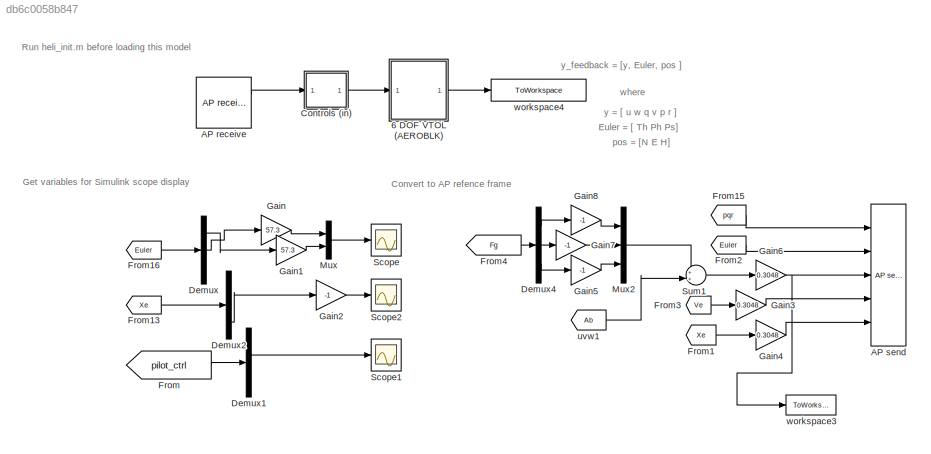
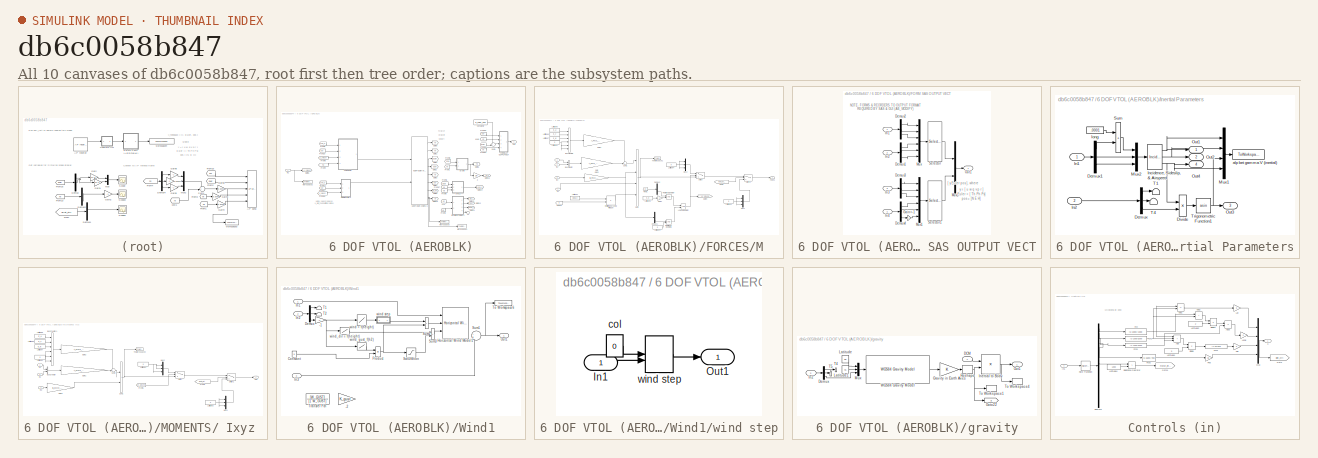
[diagram: thumbnail index - all 10 canvases of the model, root first then tree order]
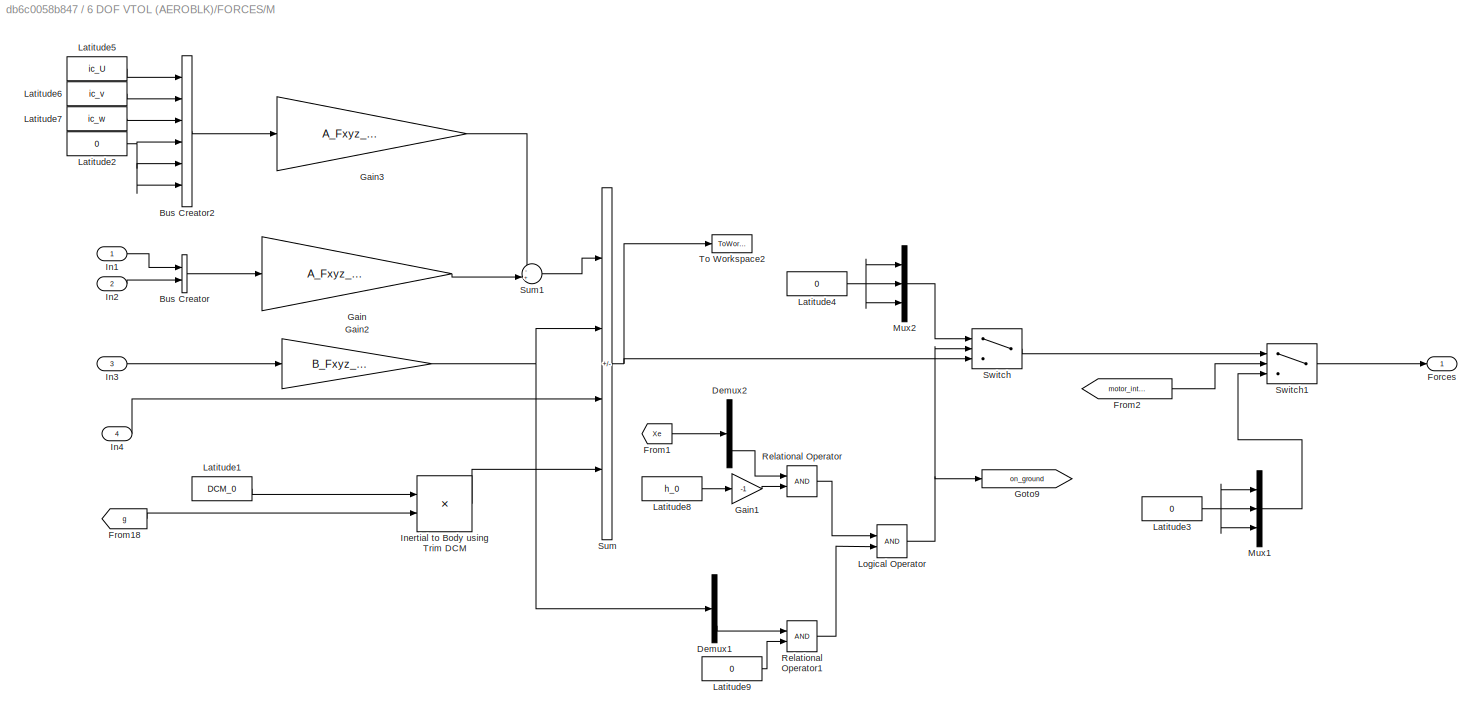
MODEL slx_db6c0058b847
KIND model
CONFIG AbsTol = 1e-3
CONFIG EnableMultiTasking = off
CONFIG FixedStep = 0.0025
CONFIG MaxStep = 0.01
CONFIG MinStep = auto
CONFIG RelTol = 1e-3
CONFIG SampleTimeConstraint = Unconstrained
CONFIG Solver = FixedStepAuto
CONFIG SolverName = FixedStepAuto
CONFIG StartTime = 0
CONFIG StopTime = Ts
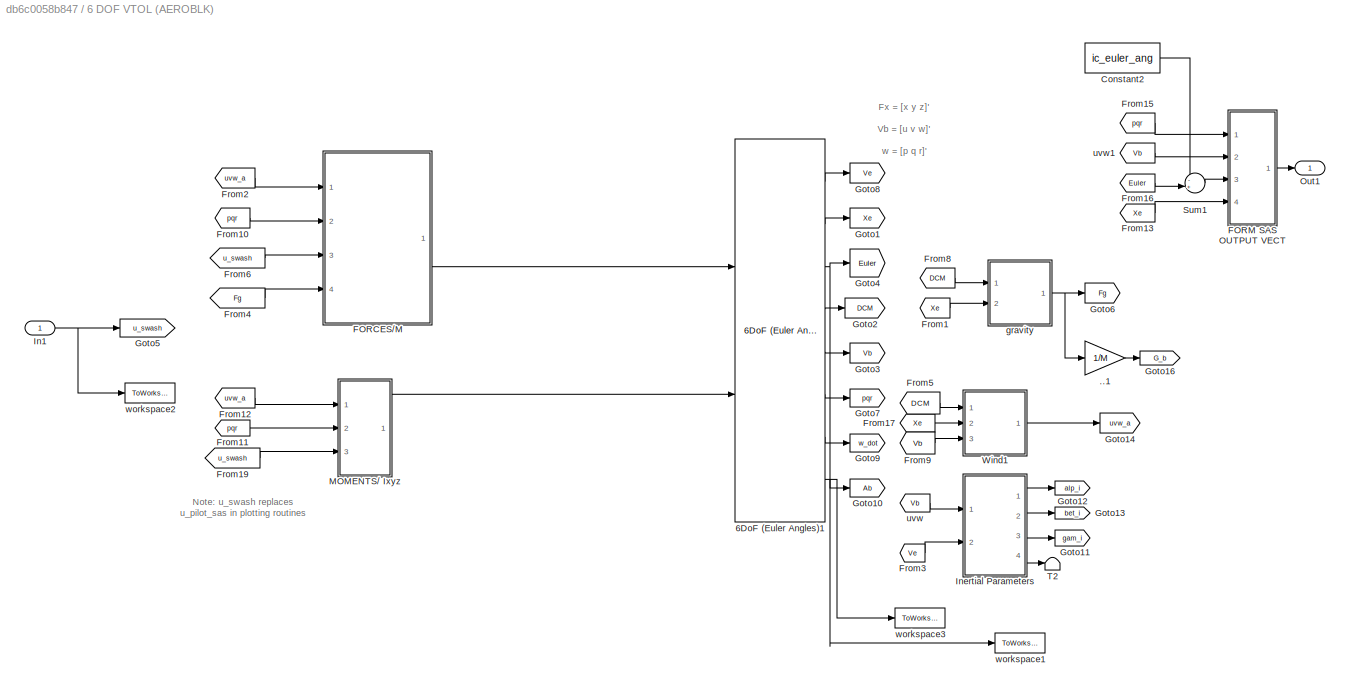
BLOCK [SubSystem] 6 DOF VTOL (AEROBLK)
  Ports = [1, 1]
  RequestExecContextInheritance = off
  ShowPortLabels = none
BLOCK [Gain] 6 DOF VTOL (AEROBLK)/..1
  Gain = 1/M
  OutDataTypeStr = Inherit: Same as input
  ParamDataTypeStr = Inherit: Same as input
  SaturateOnIntegerOverflow = on
BLOCK [Reference] 6 DOF VTOL (AEROBLK)/6DoF (Euler Angles)1  REF=aerolibobsolete/6DoF (Euler Angles)
  Ports = [2, 8]
  SourceBlock = aerolibobsolete/6DoF (Euler Angles)
  SourceProductBaseCode = AE
  SourceType = 6DoF EoM (Body Axis)
BLOCK [Constant] 6 DOF VTOL (AEROBLK)/Constant2
  Value = ic_euler_ang
BLOCK [SubSystem] 6 DOF VTOL (AEROBLK)/FORCES//M
  NameLocation = top
  Ports = [4, 1]
  RequestExecContextInheritance = off
BLOCK [BusCreator] 6 DOF VTOL (AEROBLK)/FORCES//M/Bus Creator
  DisplayOption = bar
  InheritFromInputs = on
  Inputs = 2
  Ports = [2, 1]
BLOCK [BusCreator] 6 DOF VTOL (AEROBLK)/FORCES//M/Bus Creator2
  DisplayOption = bar
  InheritFromInputs = on
  Inputs = 6
  Ports = [6, 1]
BLOCK [Demux] 6 DOF VTOL (AEROBLK)/FORCES//M/Demux1
  Outputs = 3
  Ports = [1, 3]
BLOCK [Demux] 6 DOF VTOL (AEROBLK)/FORCES//M/Demux2
  Outputs = 3
  Ports = [1, 3]
BLOCK [Outport] 6 DOF VTOL (AEROBLK)/FORCES//M/Forces
  VectorParamsAs1DForOutWhenUnconnected = off
BLOCK [From] 6 DOF VTOL (AEROBLK)/FORCES//M/From1
  CloseFcn = tagdialog Close
  GotoTag = Xe
  TagVisibility = global
BLOCK [From] 6 DOF VTOL (AEROBLK)/FORCES//M/From18
  CloseFcn = tagdialog Close
  GotoTag = g
  TagVisibility = global
BLOCK [From] 6 DOF VTOL (AEROBLK)/FORCES//M/From2
  CloseFcn = tagdialog Close
  GotoTag = motor_interlock
  TagVisibility = global
BLOCK [Gain] 6 DOF VTOL (AEROBLK)/FORCES//M/Gain
  Gain = A_Fxyz_uvw_pqr
  Multiplication = Matrix(K*u) (u vector)
BLOCK [Gain] 6 DOF VTOL (AEROBLK)/FORCES//M/Gain1
  Gain = -1
BLOCK [Gain] 6 DOF VTOL (AEROBLK)/FORCES//M/Gain2
  Gain = B_Fxyz_u_cont
  Multiplication = Matrix(K*u) (u vector)
BLOCK [Gain] 6 DOF VTOL (AEROBLK)/FORCES//M/Gain3
  Gain = A_Fxyz_uvw_pqr
  Multiplication = Matrix(K*u) (u vector)
BLOCK [Goto] 6 DOF VTOL (AEROBLK)/FORCES//M/Goto9
  GotoTag = on_ground
  TagVisibility = global
BLOCK [Inport] 6 DOF VTOL (AEROBLK)/FORCES//M/In1
BLOCK [Inport] 6 DOF VTOL (AEROBLK)/FORCES//M/In2
  Port = 2
BLOCK [Inport] 6 DOF VTOL (AEROBLK)/FORCES//M/In3
  Port = 3
BLOCK [Inport] 6 DOF VTOL (AEROBLK)/FORCES//M/In4
  Port = 4
BLOCK [Product] 6 DOF VTOL (AEROBLK)/FORCES//M/Inertial to Body using Trim DCM
  InputSameDT = on
  Multiplication = Matrix(*)
  OutDataTypeStr = Inherit: Same as first input
  Ports = [2, 1]
  SaturateOnIntegerOverflow = on
BLOCK [Constant] 6 DOF VTOL (AEROBLK)/FORCES//M/Latitude1
  Value = DCM_0
BLOCK [Constant] 6 DOF VTOL (AEROBLK)/FORCES//M/Latitude2
  Value = 0
BLOCK [Constant] 6 DOF VTOL (AEROBLK)/FORCES//M/Latitude3
  Value = 0
BLOCK [Constant] 6 DOF VTOL (AEROBLK)/FORCES//M/Latitude4
  Value = 0
BLOCK [Constant] 6 DOF VTOL (AEROBLK)/FORCES//M/Latitude5
  Value = ic_U
BLOCK [Constant] 6 DOF VTOL (AEROBLK)/FORCES//M/Latitude6
  Value = ic_v
BLOCK [Constant] 6 DOF VTOL (AEROBLK)/FORCES//M/Latitude7
  Value = ic_w
BLOCK [Constant] 6 DOF VTOL (AEROBLK)/FORCES//M/Latitude8
  Value = h_0
BLOCK [Constant] 6 DOF VTOL (AEROBLK)/FORCES//M/Latitude9
  Value = 0
BLOCK [Logic] 6 DOF VTOL (AEROBLK)/FORCES//M/Logical Operator
  AllPortsSameDT = off
  OutDataTypeStr = boolean
  Ports = [2, 1]
BLOCK [Mux] 6 DOF VTOL (AEROBLK)/FORCES//M/Mux1
  DisplayOption = bar
  Inputs = 3
  Ports = [3, 1]
BLOCK [Mux] 6 DOF VTOL (AEROBLK)/FORCES//M/Mux2
  DisplayOption = bar
  Inputs = 3
  Ports = [3, 1]
BLOCK [RelationalOperator] 6 DOF VTOL (AEROBLK)/FORCES//M/Relational Operator
  InputSameDT = off
  OutDataTypeStr = boolean
  Ports = [2, 1]
  RndMeth = Simplest
BLOCK [RelationalOperator] 6 DOF VTOL (AEROBLK)/FORCES//M/Relational Operator1
  InputSameDT = off
  OutDataTypeStr = boolean
  Ports = [2, 1]
  RndMeth = Simplest
BLOCK [Sum] 6 DOF VTOL (AEROBLK)/FORCES//M/Sum
  IconShape = rectangular
  Inputs = |+++-
  Ports = [4, 1]
BLOCK [Sum] 6 DOF VTOL (AEROBLK)/FORCES//M/Sum1
  Inputs = -+|
  Ports = [2, 1]
BLOCK [Switch] 6 DOF VTOL (AEROBLK)/FORCES//M/Switch
  Criteria = u2 > Threshold
  InputSameDT = off
  SaturateOnIntegerOverflow = off
BLOCK [Switch] 6 DOF VTOL (AEROBLK)/FORCES//M/Switch1
  Criteria = u2 > Threshold
  InputSameDT = off
  SaturateOnIntegerOverflow = off
BLOCK [ToWorkspace] 6 DOF VTOL (AEROBLK)/FORCES//M/To Workspace2
  MaxDataPoints = max_saved
  Ports = [1]
  SampleTime = -1
  VariableName = Fxyz
BLOCK [SubSystem] 6 DOF VTOL (AEROBLK)/FORM SAS OUTPUT VECT
  Ports = [4, 1]
  RequestExecContextInheritance = off
BLOCK [Demux] 6 DOF VTOL (AEROBLK)/FORM SAS OUTPUT VECT/Demux1
  Outputs = 3
  Ports = [1, 3]
BLOCK [Demux] 6 DOF VTOL (AEROBLK)/FORM SAS OUTPUT VECT/Demux2
  Outputs = 3
  Ports = [1, 3]
BLOCK [Demux] 6 DOF VTOL (AEROBLK)/FORM SAS OUTPUT VECT/Demux3
  Outputs = 3
  Ports = [1, 3]
BLOCK [Demux] 6 DOF VTOL (AEROBLK)/FORM SAS OUTPUT VECT/Demux4
  Outputs = 3
  Ports = [1, 3]
BLOCK [Gain] 6 DOF VTOL (AEROBLK)/FORM SAS OUTPUT VECT/Gain=-1
  Gain = -1
BLOCK [Inport] 6 DOF VTOL (AEROBLK)/FORM SAS OUTPUT VECT/In1
BLOCK [Inport] 6 DOF VTOL (AEROBLK)/FORM SAS OUTPUT VECT/In2
  Port = 2
BLOCK [Inport] 6 DOF VTOL (AEROBLK)/FORM SAS OUTPUT VECT/In3
  Port = 3
BLOCK [Inport] 6 DOF VTOL (AEROBLK)/FORM SAS OUTPUT VECT/In4
  Port = 4
BLOCK [Mux] 6 DOF VTOL (AEROBLK)/FORM SAS OUTPUT VECT/Mux
  DisplayOption = bar
  Inputs = 6
  Ports = [6, 1]
BLOCK [Mux] 6 DOF VTOL (AEROBLK)/FORM SAS OUTPUT VECT/Mux1
  DisplayOption = bar
  Inputs = 6
  Ports = [6, 1]
BLOCK [Mux] 6 DOF VTOL (AEROBLK)/FORM SAS OUTPUT VECT/Mux2
  DisplayOption = bar
  Inputs = 2
  Ports = [2, 1]
BLOCK [Outport] 6 DOF VTOL (AEROBLK)/FORM SAS OUTPUT VECT/Out1
  VectorParamsAs1DForOutWhenUnconnected = off
BLOCK [Selector] 6 DOF VTOL (AEROBLK)/FORM SAS OUTPUT VECT/Selector
  IndexOptions = Index vector (dialog)
  Indices = [4 6 2 5 1 3]
  InputPortWidth = 6
  OutputSizes = 1
  Ports = [1, 1]
BLOCK [Selector] 6 DOF VTOL (AEROBLK)/FORM SAS OUTPUT VECT/Selector1
  IndexOptions = Index vector (dialog)
  Indices = [2 1 3 4 5 6]
  InputPortWidth = 6
  OutputSizes = 1
  Ports = [1, 1]
BLOCK [From] 6 DOF VTOL (AEROBLK)/From1
  CloseFcn = tagdialog Close
  GotoTag = Xe
  TagVisibility = global
BLOCK [From] 6 DOF VTOL (AEROBLK)/From10
  CloseFcn = tagdialog Close
  GotoTag = pqr
  TagVisibility = global
BLOCK [From] 6 DOF VTOL (AEROBLK)/From11
  CloseFcn = tagdialog Close
  GotoTag = pqr
  TagVisibility = global
BLOCK [From] 6 DOF VTOL (AEROBLK)/From12
  CloseFcn = tagdialog Close
  GotoTag = uvw_a
  TagVisibility = global
BLOCK [From] 6 DOF VTOL (AEROBLK)/From13
  CloseFcn = tagdialog Close
  GotoTag = Xe
  TagVisibility = global
BLOCK [From] 6 DOF VTOL (AEROBLK)/From15
  CloseFcn = tagdialog Close
  GotoTag = pqr
  TagVisibility = global
BLOCK [From] 6 DOF VTOL (AEROBLK)/From16
  CloseFcn = tagdialog Close
  GotoTag = Euler
  TagVisibility = global
BLOCK [From] 6 DOF VTOL (AEROBLK)/From17
  CloseFcn = tagdialog Close
  GotoTag = Xe
  TagVisibility = global
BLOCK [From] 6 DOF VTOL (AEROBLK)/From19
  CloseFcn = tagdialog Close
  GotoTag = u_swash
  TagVisibility = global
BLOCK [From] 6 DOF VTOL (AEROBLK)/From2
  CloseFcn = tagdialog Close
  GotoTag = uvw_a
  TagVisibility = global
BLOCK [From] 6 DOF VTOL (AEROBLK)/From3
  CloseFcn = tagdialog Close
  GotoTag = Ve
  TagVisibility = global
BLOCK [From] 6 DOF VTOL (AEROBLK)/From4
  CloseFcn = tagdialog Close
  GotoTag = Fg
  TagVisibility = global
BLOCK [From] 6 DOF VTOL (AEROBLK)/From5
  CloseFcn = tagdialog Close
  GotoTag = DCM
  TagVisibility = global
BLOCK [From] 6 DOF VTOL (AEROBLK)/From6
  CloseFcn = tagdialog Close
  GotoTag = u_swash
  TagVisibility = global
BLOCK [From] 6 DOF VTOL (AEROBLK)/From8
  CloseFcn = tagdialog Close
  GotoTag = DCM
  TagVisibility = global
BLOCK [From] 6 DOF VTOL (AEROBLK)/From9
  CloseFcn = tagdialog Close
  GotoTag = Vb
  TagVisibility = global
BLOCK [Goto] 6 DOF VTOL (AEROBLK)/Goto1
  GotoTag = Xe
  TagVisibility = global
BLOCK [Goto] 6 DOF VTOL (AEROBLK)/Goto10
  GotoTag = Ab
  TagVisibility = global
BLOCK [Goto] 6 DOF VTOL (AEROBLK)/Goto11
  GotoTag = gam_i
  TagVisibility = global
BLOCK [Goto] 6 DOF VTOL (AEROBLK)/Goto12
  GotoTag = alp_i
  TagVisibility = global
BLOCK [Goto] 6 DOF VTOL (AEROBLK)/Goto13
  GotoTag = bet_i
  TagVisibility = global
BLOCK [Goto] 6 DOF VTOL (AEROBLK)/Goto14
  GotoTag = uvw_a
  TagVisibility = global
BLOCK [Goto] 6 DOF VTOL (AEROBLK)/Goto16
  GotoTag = G_b
  TagVisibility = global
BLOCK [Goto] 6 DOF VTOL (AEROBLK)/Goto2
  GotoTag = DCM
  TagVisibility = global
BLOCK [Goto] 6 DOF VTOL (AEROBLK)/Goto3
  GotoTag = Vb
  TagVisibility = global
BLOCK [Goto] 6 DOF VTOL (AEROBLK)/Goto4
  GotoTag = Euler
  TagVisibility = global
BLOCK [Goto] 6 DOF VTOL (AEROBLK)/Goto5
  GotoTag = u_swash
  TagVisibility = global
BLOCK [Goto] 6 DOF VTOL (AEROBLK)/Goto6
  GotoTag = Fg
  TagVisibility = global
BLOCK [Goto] 6 DOF VTOL (AEROBLK)/Goto7
  GotoTag = pqr
  TagVisibility = global
BLOCK [Goto] 6 DOF VTOL (AEROBLK)/Goto8
  GotoTag = Ve
  TagVisibility = global
BLOCK [Goto] 6 DOF VTOL (AEROBLK)/Goto9
  GotoTag = w_dot
  TagVisibility = global
BLOCK [Inport] 6 DOF VTOL (AEROBLK)/In1
BLOCK [SubSystem] 6 DOF VTOL (AEROBLK)/Inertial Parameters
  Ports = [2, 4]
  RequestExecContextInheritance = off
BLOCK [Demux] 6 DOF VTOL (AEROBLK)/Inertial Parameters/Demux
  Outputs = 3
  Ports = [1, 3]
BLOCK [Demux] 6 DOF VTOL (AEROBLK)/Inertial Parameters/Demux1
  Outputs = 3
  Ports = [1, 3]
BLOCK [Product] 6 DOF VTOL (AEROBLK)/Inertial Parameters/Divide
  Inputs = /*
  Ports = [2, 1]
BLOCK [Inport] 6 DOF VTOL (AEROBLK)/Inertial Parameters/In1
BLOCK [Inport] 6 DOF VTOL (AEROBLK)/Inertial Parameters/In2
  Port = 2
BLOCK [Reference] 6 DOF VTOL (AEROBLK)/Inertial Parameters/Incidence, Sideslip, & Airspeed  REF=aerolibasang/Incidence, Sideslip,
& Airspeed
  Ports = [1, 3]
  SourceBlock = aerolibasang/Incidence, Sideslip,\n& Airspeed
  SourceProductBaseCode = AE
  SourceType = Incidence,Sideslip,&Airspeed
BLOCK [Mux] 6 DOF VTOL (AEROBLK)/Inertial Parameters/Mux1
  DisplayOption = bar
  Ports = [4, 1]
BLOCK [Mux] 6 DOF VTOL (AEROBLK)/Inertial Parameters/Mux2
  DisplayOption = bar
  Inputs = 3
  Ports = [3, 1]
BLOCK [Outport] 6 DOF VTOL (AEROBLK)/Inertial Parameters/Out1
  NameLocation = top
  VectorParamsAs1DForOutWhenUnconnected = off
BLOCK [Outport] 6 DOF VTOL (AEROBLK)/Inertial Parameters/Out2
  Port = 2
  VectorParamsAs1DForOutWhenUnconnected = off
BLOCK [Outport] 6 DOF VTOL (AEROBLK)/Inertial Parameters/Out3
  Port = 3
  VectorParamsAs1DForOutWhenUnconnected = off
BLOCK [Outport] 6 DOF VTOL (AEROBLK)/Inertial Parameters/Out4
  Port = 4
  VectorParamsAs1DForOutWhenUnconnected = off
BLOCK [Sum] 6 DOF VTOL (AEROBLK)/Inertial Parameters/Sum
  IconShape = rectangular
  Inputs = |++
  Ports = [2, 1]
BLOCK [Terminator] 6 DOF VTOL (AEROBLK)/Inertial Parameters/T1
BLOCK [Terminator] 6 DOF VTOL (AEROBLK)/Inertial Parameters/T4
BLOCK [Trigonometry] 6 DOF VTOL (AEROBLK)/Inertial Parameters/Trigonometric Function1
  Operator = asin
  Ports = [1, 1]
BLOCK [ToWorkspace] 6 DOF VTOL (AEROBLK)/Inertial Parameters/alp bet gamma V (inertial)
  MaxDataPoints = max_saved
  Ports = [1]
  SampleTime = -1
  VariableName = am_inert
BLOCK [Constant] 6 DOF VTOL (AEROBLK)/Inertial Parameters/long
  Value = .0001
BLOCK [SubSystem] 6 DOF VTOL (AEROBLK)/MOMENTS// Ixyz 
  Ports = [3, 1]
  RequestExecContextInheritance = off
BLOCK [BusCreator] 6 DOF VTOL (AEROBLK)/MOMENTS// Ixyz /Bus Creator
  DisplayOption = bar
  InheritFromInputs = on
  Inputs = 2
  Ports = [2, 1]
BLOCK [BusCreator] 6 DOF VTOL (AEROBLK)/MOMENTS// Ixyz /Bus Creator1
  DisplayOption = bar
  InheritFromInputs = on
  Inputs = 6
  Ports = [6, 1]
BLOCK [From] 6 DOF VTOL (AEROBLK)/MOMENTS// Ixyz /From2
  CloseFcn = tagdialog Close
  GotoTag = motor_interlock
  TagVisibility = global
BLOCK [From] 6 DOF VTOL (AEROBLK)/MOMENTS// Ixyz /From6
  CloseFcn = tagdialog Close
  GotoTag = on_ground
  TagVisibility = global
BLOCK [Gain] 6 DOF VTOL (AEROBLK)/MOMENTS// Ixyz /Gain1
  Gain = A_Mxyz_uvw_pqr
  Multiplication = Matrix(K*u) (u vector)
BLOCK [Gain] 6 DOF VTOL (AEROBLK)/MOMENTS// Ixyz /Gain2
  Gain = A_Mxyz_uvw_pqr
  Multiplication = Matrix(K*u) (u vector)
BLOCK [Gain] 6 DOF VTOL (AEROBLK)/MOMENTS// Ixyz /Gain3
  Gain = B_Mxyz_u_cont
  Multiplication = Matrix(K*u) (u vector)
BLOCK [Inport] 6 DOF VTOL (AEROBLK)/MOMENTS// Ixyz /In1
BLOCK [Inport] 6 DOF VTOL (AEROBLK)/MOMENTS// Ixyz /In2
  Port = 2
BLOCK [Inport] 6 DOF VTOL (AEROBLK)/MOMENTS// Ixyz /In3
  Port = 3
BLOCK [Constant] 6 DOF VTOL (AEROBLK)/MOMENTS// Ixyz /Latitude2
  Value = 0
BLOCK [Constant] 6 DOF VTOL (AEROBLK)/MOMENTS// Ixyz /Latitude3
  Value = 0
BLOCK [Constant] 6 DOF VTOL (AEROBLK)/MOMENTS// Ixyz /Latitude4
  Value = 0
BLOCK [Constant] 6 DOF VTOL (AEROBLK)/MOMENTS// Ixyz /Latitude5
  Value = ic_U
BLOCK [Constant] 6 DOF VTOL (AEROBLK)/MOMENTS// Ixyz /Latitude6
  Value = ic_v
BLOCK [Constant] 6 DOF VTOL (AEROBLK)/MOMENTS// Ixyz /Latitude7
  Value = ic_w
BLOCK [Mux] 6 DOF VTOL (AEROBLK)/MOMENTS// Ixyz /Mux1
  DisplayOption = bar
  Inputs = 3
  Ports = [3, 1]
BLOCK [Mux] 6 DOF VTOL (AEROBLK)/MOMENTS// Ixyz /Mux2
  DisplayOption = bar
  Inputs = 3
  Ports = [3, 1]
BLOCK [Outport] 6 DOF VTOL (AEROBLK)/MOMENTS// Ixyz /Out1
  VectorParamsAs1DForOutWhenUnconnected = off
BLOCK [Sum] 6 DOF VTOL (AEROBLK)/MOMENTS// Ixyz /Sum1
  IconShape = rectangular
  Inputs = |++
  Ports = [2, 1]
BLOCK [Sum] 6 DOF VTOL (AEROBLK)/MOMENTS// Ixyz /Sum2
  Inputs = -+|
  Ports = [2, 1]
BLOCK [Switch] 6 DOF VTOL (AEROBLK)/MOMENTS// Ixyz /Switch
  Criteria = u2 > Threshold
  InputSameDT = off
  SaturateOnIntegerOverflow = off
BLOCK [Switch] 6 DOF VTOL (AEROBLK)/MOMENTS// Ixyz /Switch1
  Criteria = u2 > Threshold
  InputSameDT = off
  SaturateOnIntegerOverflow = off
BLOCK [ToWorkspace] 6 DOF VTOL (AEROBLK)/MOMENTS// Ixyz /To Workspace2
  MaxDataPoints = max_saved
  Ports = [1]
  SampleTime = -1
  VariableName = Mxyz
BLOCK [Outport] 6 DOF VTOL (AEROBLK)/Out1
  VectorParamsAs1DForOutWhenUnconnected = off
BLOCK [Sum] 6 DOF VTOL (AEROBLK)/Sum1
  Inputs = -+|
  Ports = [2, 1]
BLOCK [Terminator] 6 DOF VTOL (AEROBLK)/T2
BLOCK [SubSystem] 6 DOF VTOL (AEROBLK)/Wind1
  Ports = [3, 1]
  RequestExecContextInheritance = off
BLOCK [Gain] 6 DOF VTOL (AEROBLK)/Wind1/-1
  Gain = -1
BLOCK [Gain] 6 DOF VTOL (AEROBLK)/Wind1/-2
  Gain = K_gust
BLOCK [Constant] 6 DOF VTOL (AEROBLK)/Wind1/Constant
  Value = 0
BLOCK [Demux] 6 DOF VTOL (AEROBLK)/Wind1/Demux
  Outputs = 3
  Ports = [1, 3]
BLOCK [Reference] 6 DOF VTOL (AEROBLK)/Wind1/Horizontal Wind Model1  REF=aerolibwind2/Horizontal Wind Model
  NameLocation = top
  Ports = [3, 1]
  SourceBlock = aerolibwind2/Horizontal Wind Model
  SourceProductBaseCode = AE
  SourceType = Horizontal Wind Model
BLOCK [Inport] 6 DOF VTOL (AEROBLK)/Wind1/In1
BLOCK [Inport] 6 DOF VTOL (AEROBLK)/Wind1/In2
  Port = 2
BLOCK [Inport] 6 DOF VTOL (AEROBLK)/Wind1/In3
  Port = 3
BLOCK [Outport] 6 DOF VTOL (AEROBLK)/Wind1/Out1
  VectorParamsAs1DForOutWhenUnconnected = off
BLOCK [Product] 6 DOF VTOL (AEROBLK)/Wind1/Product
  Ports = [2, 1]
  RndMeth = Zero
BLOCK [Saturate] 6 DOF VTOL (AEROBLK)/Wind1/Saturation
  LowerLimit = -Th_wind_limit
  UpperLimit = Th_wind_limit
BLOCK [Sum] 6 DOF VTOL (AEROBLK)/Wind1/Sum1
  Inputs = -+
  Ports = [2, 1]
BLOCK [Sum] 6 DOF VTOL (AEROBLK)/Wind1/Sum2
  IconShape = rectangular
  Ports = [2, 1]
BLOCK [Sum] 6 DOF VTOL (AEROBLK)/Wind1/Sum3
  IconShape = rectangular
  Ports = [2, 1]
BLOCK [Terminator] 6 DOF VTOL (AEROBLK)/Wind1/T1
BLOCK [Terminator] 6 DOF VTOL (AEROBLK)/Wind1/T2
BLOCK [ToWorkspace] 6 DOF VTOL (AEROBLK)/Wind1/To Workspace6
  MaxDataPoints = max_saved
  Ports = [1]
  SampleTime = -1
  VariableName = uvw_a
BLOCK [TransferFcn] 6 DOF VTOL (AEROBLK)/Wind1/Transfer Fcn
  Denominator = [1 W_GUST]
  Numerator = [W_GUST]
BLOCK [Lookup] 6 DOF VTOL (AEROBLK)/Wind1/wind = f(height)
  InputValues = hw
  NameLocation = top
  SaturateOnIntegerOverflow = off
  Table = Vw
BLOCK [SubSystem] 6 DOF VTOL (AEROBLK)/Wind1/wind step
  NameLocation = top
  Ports = [1, 1]
  RequestExecContextInheritance = off
BLOCK [Inport] 6 DOF VTOL (AEROBLK)/Wind1/wind step/In1
BLOCK [Outport] 6 DOF VTOL (AEROBLK)/Wind1/wind step/Out1
  VectorParamsAs1DForOutWhenUnconnected = off
BLOCK [Constant] 6 DOF VTOL (AEROBLK)/Wind1/wind step/col
  NameLocation = top
  Value = 0
BLOCK [ManualSwitch] 6 DOF VTOL (AEROBLK)/Wind1/wind step/wind step
  NameLocation = top
BLOCK [Lookup] 6 DOF VTOL (AEROBLK)/Wind1/wind_dir = f(height)
  InputValues = hw
  NameLocation = top
  SaturateOnIntegerOverflow = off
  Table = Dir_w
BLOCK [Lookup] 6 DOF VTOL (AEROBLK)/Wind1/wind_gust_f(h2)
  InputValues = hw_gust
  LookUpMeth = Use Input Nearest
  NameLocation = top
  SaturateOnIntegerOverflow = off
  Table = K_gust_factor
BLOCK [SubSystem] 6 DOF VTOL (AEROBLK)/gravity
  Ports = [2, 1]
  RequestExecContextInheritance = off
BLOCK [Inport] 6 DOF VTOL (AEROBLK)/gravity/DCM
  IconDisplay = Signal name
BLOCK [Demux] 6 DOF VTOL (AEROBLK)/gravity/Demux
  Outputs = 3
  Ports = [1, 3]
BLOCK [Goto] 6 DOF VTOL (AEROBLK)/gravity/Goto22
  GotoTag = g
  TagVisibility = global
BLOCK [Gain] 6 DOF VTOL (AEROBLK)/gravity/Gravity in Earth Axes
  OutDataTypeStr = Inherit: Same as input
  ParamDataTypeStr = Inherit: Same as input
  SaturateOnIntegerOverflow = on
BLOCK [Inport] 6 DOF VTOL (AEROBLK)/gravity/In2
  IconDisplay = Signal name
  Port = 2
BLOCK [Product] 6 DOF VTOL (AEROBLK)/gravity/Inertial to Body
  InputSameDT = on
  Multiplication = Matrix(*)
  OutDataTypeStr = Inherit: Same as first input
  Ports = [2, 1]
  SaturateOnIntegerOverflow = on
BLOCK [Constant] 6 DOF VTOL (AEROBLK)/gravity/Latitude
  Value = 39
BLOCK [Constant] 6 DOF VTOL (AEROBLK)/gravity/Latitude1
  Value = 76
BLOCK [Mux] 6 DOF VTOL (AEROBLK)/gravity/Mux
  DisplayOption = bar
  Inputs = 3
  Ports = [3, 1]
BLOCK [Outport] 6 DOF VTOL (AEROBLK)/gravity/Out1
  IconDisplay = Port number and signal name
  VectorParamsAs1DForOutWhenUnconnected = off
BLOCK [Reshape] 6 DOF VTOL (AEROBLK)/gravity/Reshape
  Ports = [1, 1]
BLOCK [Terminator] 6 DOF VTOL (AEROBLK)/gravity/T4
BLOCK [Terminator] 6 DOF VTOL (AEROBLK)/gravity/T5
BLOCK [ToWorkspace] 6 DOF VTOL (AEROBLK)/gravity/To Workspace1
  MaxDataPoints = max_saved
  Ports = [1]
  SampleTime = -1
  VariableName = g
BLOCK [ToWorkspace] 6 DOF VTOL (AEROBLK)/gravity/To Workspace4
  MaxDataPoints = max_saved
  Ports = [1]
  SampleTime = -1
  VariableName = Fg
BLOCK [Reference] 6 DOF VTOL (AEROBLK)/gravity/WGS84 Gravity Model   REF=aerolibobsolete/WGS84 Gravity Model 
  Ports = [1, 1]
  SourceBlock = aerolibobsolete/WGS84 Gravity Model
  SourceProductBaseCode = AE
  SourceType = WGS84 Gravity Model 3D
BLOCK [From] 6 DOF VTOL (AEROBLK)/uvw
  CloseFcn = tagdialog Close
  GotoTag = Vb
  TagVisibility = global
BLOCK [From] 6 DOF VTOL (AEROBLK)/uvw1
  CloseFcn = tagdialog Close
  GotoTag = Vb
  TagVisibility = global
BLOCK [ToWorkspace] 6 DOF VTOL (AEROBLK)/workspace1
  MaxDataPoints = max_saved
  Ports = [1]
  VariableName = Euler
BLOCK [ToWorkspace] 6 DOF VTOL (AEROBLK)/workspace2
  MaxDataPoints = max_saved
  Ports = [1]
  VariableName = u_swash
BLOCK [ToWorkspace] 6 DOF VTOL (AEROBLK)/workspace3
  MaxDataPoints = max_saved
  Ports = [1]
  VariableName = Ab
BLOCK [Reference] AP receive  REF=AP_Conector/AP receive
  Ports = [0, 2]
  SourceBlock = AP_Conector/AP receive
  SourceType = SubSystem
BLOCK [Reference] AP send  REF=AP_Conector/AP send
  Ports = [5]
  SourceBlock = AP_Conector/AP send
  SourceType = SubSystem
BLOCK [SubSystem] Controls (in)
  Ports = [1, 1]
  RequestExecContextInheritance = off
BLOCK [Sum] Controls (in)/Add
  IconShape = rectangular
  Inputs = +++
  Ports = [3, 1]
BLOCK [Sum] Controls (in)/Add1
  IconShape = rectangular
  Inputs = +-
  Ports = [2, 1]
BLOCK [Sum] Controls (in)/Add2
  IconShape = rectangular
  Ports = [2, 1]
BLOCK [Sum] Controls (in)/Add3
  IconShape = rectangular
  Inputs = +-
  Ports = [2, 1]
BLOCK [Gain] Controls (in)/Coll
  Gain = 5
BLOCK [Demux] Controls (in)/Demux3
  Outputs = 16
  Ports = [1, 16]
BLOCK [Product] Controls (in)/Divide
  Inputs = */
  Ports = [2, 1]
BLOCK [Product] Controls (in)/Divide1
  Inputs = */
  Ports = [2, 1]
BLOCK [Fcn] Controls (in)/Fcn
  Expr = (u-1000)/1000
BLOCK [Fcn] Controls (in)/Fcn1
  Expr = (u-1000)/1000
BLOCK [Fcn] Controls (in)/Fcn2
  Expr = (u-1500)/400
BLOCK [Fcn] Controls (in)/Fcn3
  Expr = (u-1000)/1000
BLOCK [Fcn] Controls (in)/Fcn4
  Expr = (u-0.6)/0.28
BLOCK [Goto] Controls (in)/Goto
  GotoTag = pilot_ctrl
  TagVisibility = global
BLOCK [Goto] Controls (in)/Goto1
  GotoTag = motor_interlock
  TagVisibility = global
BLOCK [Inport] Controls (in)/In1
BLOCK [Gain] Controls (in)/Lat
  Gain = 5
BLOCK [Constant] Controls (in)/Latitude1
  Value = 3
BLOCK [Constant] Controls (in)/Latitude2
  Value = 2
BLOCK [Constant] Controls (in)/Latitude4
  Value = 1200
BLOCK [Gain] Controls (in)/Long
  Gain = 5
BLOCK [Mux] Controls (in)/Mux
  DisplayOption = bar
  Ports = [4, 1]
BLOCK [Gain] Controls (in)/Ped
  Gain = 2.5
BLOCK [RateTransition] Controls (in)/Rate Transition
BLOCK [RelationalOperator] Controls (in)/Relational Operator
  InputSameDT = off
  Operator = >
  OutDataTypeStr = boolean
  Ports = [2, 1]
  RndMeth = Simplest
BLOCK [Outport] Controls (in)/u
  VectorParamsAs1DForOutWhenUnconnected = off
BLOCK [Demux] Demux
  Outputs = 3
  Ports = [1, 3]
BLOCK [Demux] Demux1
  Ports = [1, 4]
BLOCK [Demux] Demux2
  Outputs = 3
  Ports = [1, 3]
BLOCK [Demux] Demux4
  Outputs = 3
  Ports = [1, 3]
BLOCK [From] From
  GotoTag = pilot_ctrl
  TagVisibility = global
BLOCK [From] From1
  CloseFcn = tagdialog Close
  GotoTag = Xe
  TagVisibility = global
BLOCK [From] From13
  CloseFcn = tagdialog Close
  GotoTag = Xe
  TagVisibility = global
BLOCK [From] From15
  CloseFcn = tagdialog Close
  GotoTag = pqr
  TagVisibility = global
BLOCK [From] From16
  CloseFcn = tagdialog Close
  GotoTag = Euler
  TagVisibility = global
BLOCK [From] From2
  CloseFcn = tagdialog Close
  GotoTag = Euler
  TagVisibility = global
BLOCK [From] From3
  CloseFcn = tagdialog Close
  GotoTag = Ve
  TagVisibility = global
BLOCK [From] From4
  CloseFcn = tagdialog Close
  GotoTag = Fg
  TagVisibility = global
BLOCK [Gain] Gain
  Gain = 57.3
BLOCK [Gain] Gain1
  Gain = 57.3
BLOCK [Gain] Gain2
  Gain = -1
BLOCK [Gain] Gain3
  Gain = 0.3048
BLOCK [Gain] Gain4
  Gain = 0.3048
BLOCK [Gain] Gain5
  Gain = -1
BLOCK [Gain] Gain6
  Gain = 0.3048
BLOCK [Gain] Gain7
  Gain = -1
BLOCK [Gain] Gain8
  Gain = -1
BLOCK [Mux] Mux
  DisplayOption = bar
  Inputs = 2
  Ports = [2, 1]
BLOCK [Mux] Mux2
  DisplayOption = bar
  Inputs = 3
  Ports = [3, 1]
BLOCK [Scope] Scope
  Floating = off
  NumInputPorts = 1
  Ports = [1]
  ScopeSpecificationString = Simulink.scopes.TimeScopeBlockCfg('CurrentConfiguration', extmgr.ConfigurationSet(extmgr.Configuration('Core','General UI',true),extmgr.Configuration('Core','Source UI',true),extmgr.Configuration('Sources','WiredSimulink',true),extmgr.Configuration('Visuals','Time Domain',true,'SerializedDisplays',{struct('MinYLimReal','-47.55101','MaxYLimReal','52.80551','YLabelReal','','MinYLimMag','0.00000','Ma...<+1390ch>
BLOCK [Scope] Scope1
  Floating = off
  NumInputPorts = 1
  Ports = [1]
  ScopeSpecificationString = Simulink.scopes.TimeScopeBlockCfg('CurrentConfiguration', extmgr.ConfigurationSet(extmgr.Configuration('Core','General UI',true),extmgr.Configuration('Core','Source UI',true),extmgr.Configuration('Sources','WiredSimulink',true,'DataLoggingVariableName','ScopeData1'),extmgr.Configuration('Visuals','Time Domain',true,'SerializedDisplays',{struct('MinYLimReal','-0.81417','MaxYLimReal','0.90542','YLab...<+1439ch>
BLOCK [Scope] Scope2
  Floating = off
  NumInputPorts = 1
  Ports = [1]
  ScopeSpecificationString = Simulink.scopes.TimeScopeBlockCfg('CurrentConfiguration', extmgr.ConfigurationSet(extmgr.Configuration('Core','General UI',true),extmgr.Configuration('Core','Source UI',true),extmgr.Configuration('Sources','WiredSimulink',true,'DataLoggingVariableName','ScopeData2'),extmgr.Configuration('Visuals','Time Domain',true,'SerializedDisplays',{struct('MinYLimReal','-478.06179','MaxYLimReal','142.00687','...<+1451ch>
BLOCK [Sum] Sum1
  Inputs = ++|
  Ports = [2, 1]
BLOCK [From] uvw1
  CloseFcn = tagdialog Close
  GotoTag = Ab
  TagVisibility = global
BLOCK [ToWorkspace] workspace3
  MaxDataPoints = max_saved
  Ports = [1]
  VariableName = Ab_mss
BLOCK [ToWorkspace] workspace4
  MaxDataPoints = max_saved
  Ports = [1]
  VariableName = y_feedback
ANNOTATION (root): Run heli_init.m before loading this model
ANNOTATION (root): Convert to AP refence frame
ANNOTATION (root): Euler = [ Th Ph Ps]
ANNOTATION (root): Get variables for Simulink scope display
ANNOTATION (root): pos = [N E H]
ANNOTATION (root): where
ANNOTATION (root): y = [ u w q v p r ]
ANNOTATION (root): y_feedback = [y, Euler, pos ]
ANNOTATION 6 DOF VTOL (AEROBLK): Fx = [x y z]' Vb = [u v w]' w = [p q r]' M = [L M N]' I = Ixx 0 0 0 Iyy 0 0 0 Izz
ANNOTATION 6 DOF VTOL (AEROBLK): Note: u_swash replaces u_pilot_sas in plotting routines
ANNOTATION 6 DOF VTOL (AEROBLK)/FORM SAS OUTPUT VECT: Euler = [ Th Ph Ps]
ANNOTATION 6 DOF VTOL (AEROBLK)/FORM SAS OUTPUT VECT: NOTE- FORMS & REORDERS TO OUTPUT FORMAT REQUIRED BY SAS & GUI (AB_MODIFY)
ANNOTATION 6 DOF VTOL (AEROBLK)/FORM SAS OUTPUT VECT: [ y Euler pos ], where
ANNOTATION 6 DOF VTOL (AEROBLK)/FORM SAS OUTPUT VECT: pos = [N E H]
ANNOTATION 6 DOF VTOL (AEROBLK)/FORM SAS OUTPUT VECT: y = [ u w q v p r ]
ANNOTATION Controls (in): u=[coll long lat ped]
LINE 6 DOF VTOL (AEROBLK)/..1:1 -> 6 DOF VTOL (AEROBLK)/Goto16:1
LINE 6 DOF VTOL (AEROBLK)/6DoF (Euler Angles)1:1 -> 6 DOF VTOL (AEROBLK)/Goto8:1
LINE 6 DOF VTOL (AEROBLK)/6DoF (Euler Angles)1:2 -> 6 DOF VTOL (AEROBLK)/Goto1:1
NET 6 DOF VTOL (AEROBLK)/6DoF (Euler Angles)1:3 -> 6 DOF VTOL (AEROBLK)/Goto4:1, 6 DOF VTOL (AEROBLK)/workspace1:1
LINE 6 DOF VTOL (AEROBLK)/6DoF (Euler Angles)1:4 -> 6 DOF VTOL (AEROBLK)/Goto2:1
LINE 6 DOF VTOL (AEROBLK)/6DoF (Euler Angles)1:5 -> 6 DOF VTOL (AEROBLK)/Goto3:1
LINE 6 DOF VTOL (AEROBLK)/6DoF (Euler Angles)1:6 -> 6 DOF VTOL (AEROBLK)/Goto7:1
LINE 6 DOF VTOL (AEROBLK)/6DoF (Euler Angles)1:7 -> 6 DOF VTOL (AEROBLK)/Goto9:1
NET 6 DOF VTOL (AEROBLK)/6DoF (Euler Angles)1:8 -> 6 DOF VTOL (AEROBLK)/Goto10:1, 6 DOF VTOL (AEROBLK)/workspace3:1
LINE 6 DOF VTOL (AEROBLK)/Constant2:1 -> 6 DOF VTOL (AEROBLK)/Sum1:1
LINE 6 DOF VTOL (AEROBLK)/FORCES//M/Bus Creator2:1 -> 6 DOF VTOL (AEROBLK)/FORCES//M/Gain3:1
LINE 6 DOF VTOL (AEROBLK)/FORCES//M/Bus Creator:1 -> 6 DOF VTOL (AEROBLK)/FORCES//M/Gain:1
LINE 6 DOF VTOL (AEROBLK)/FORCES//M/Demux1:3 -> 6 DOF VTOL (AEROBLK)/FORCES//M/Relational Operator1:1
LINE 6 DOF VTOL (AEROBLK)/FORCES//M/Demux2:3 -> 6 DOF VTOL (AEROBLK)/FORCES//M/Relational Operator:1
LINE 6 DOF VTOL (AEROBLK)/FORCES//M/From18:1 -> 6 DOF VTOL (AEROBLK)/FORCES//M/Inertial to Body using Trim DCM:2
LINE 6 DOF VTOL (AEROBLK)/FORCES//M/From1:1 -> 6 DOF VTOL (AEROBLK)/FORCES//M/Demux2:1
LINE 6 DOF VTOL (AEROBLK)/FORCES//M/From2:1 -> 6 DOF VTOL (AEROBLK)/FORCES//M/Switch1:2
LINE 6 DOF VTOL (AEROBLK)/FORCES//M/Gain1:1 -> 6 DOF VTOL (AEROBLK)/FORCES//M/Relational Operator:2
NET 6 DOF VTOL (AEROBLK)/FORCES//M/Gain2:1 -> 6 DOF VTOL (AEROBLK)/FORCES//M/Demux1:1, 6 DOF VTOL (AEROBLK)/FORCES//M/Sum:2
LINE 6 DOF VTOL (AEROBLK)/FORCES//M/Gain3:1 -> 6 DOF VTOL (AEROBLK)/FORCES//M/Sum1:1
LINE 6 DOF VTOL (AEROBLK)/FORCES//M/Gain:1 -> 6 DOF VTOL (AEROBLK)/FORCES//M/Sum1:2
LINE 6 DOF VTOL (AEROBLK)/FORCES//M/In1:1 -> 6 DOF VTOL (AEROBLK)/FORCES//M/Bus Creator:1
LINE 6 DOF VTOL (AEROBLK)/FORCES//M/In2:1 -> 6 DOF VTOL (AEROBLK)/FORCES//M/Bus Creator:2
LINE 6 DOF VTOL (AEROBLK)/FORCES//M/In3:1 -> 6 DOF VTOL (AEROBLK)/FORCES//M/Gain2:1
LINE 6 DOF VTOL (AEROBLK)/FORCES//M/In4:1 -> 6 DOF VTOL (AEROBLK)/FORCES//M/Sum:3
LINE 6 DOF VTOL (AEROBLK)/FORCES//M/Inertial to Body using Trim DCM:1 -> 6 DOF VTOL (AEROBLK)/FORCES//M/Sum:4
LINE 6 DOF VTOL (AEROBLK)/FORCES//M/Latitude1:1 -> 6 DOF VTOL (AEROBLK)/FORCES//M/Inertial to Body using Trim DCM:1
NET 6 DOF VTOL (AEROBLK)/FORCES//M/Latitude2:1 -> 6 DOF VTOL (AEROBLK)/FORCES//M/Bus Creator2:4, 6 DOF VTOL (AEROBLK)/FORCES//M/Bus Creator2:5, 6 DOF VTOL (AEROBLK)/FORCES//M/Bus Creator2:6
NET 6 DOF VTOL (AEROBLK)/FORCES//M/Latitude3:1 -> 6 DOF VTOL (AEROBLK)/FORCES//M/Mux1:1, 6 DOF VTOL (AEROBLK)/FORCES//M/Mux1:2, 6 DOF VTOL (AEROBLK)/FORCES//M/Mux1:3
NET 6 DOF VTOL (AEROBLK)/FORCES//M/Latitude4:1 -> 6 DOF VTOL (AEROBLK)/FORCES//M/Mux2:1, 6 DOF VTOL (AEROBLK)/FORCES//M/Mux2:2, 6 DOF VTOL (AEROBLK)/FORCES//M/Mux2:3
LINE 6 DOF VTOL (AEROBLK)/FORCES//M/Latitude5:1 -> 6 DOF VTOL (AEROBLK)/FORCES//M/Bus Creator2:1
LINE 6 DOF VTOL (AEROBLK)/FORCES//M/Latitude6:1 -> 6 DOF VTOL (AEROBLK)/FORCES//M/Bus Creator2:2
LINE 6 DOF VTOL (AEROBLK)/FORCES//M/Latitude7:1 -> 6 DOF VTOL (AEROBLK)/FORCES//M/Bus Creator2:3
LINE 6 DOF VTOL (AEROBLK)/FORCES//M/Latitude8:1 -> 6 DOF VTOL (AEROBLK)/FORCES//M/Gain1:1
LINE 6 DOF VTOL (AEROBLK)/FORCES//M/Latitude9:1 -> 6 DOF VTOL (AEROBLK)/FORCES//M/Relational Operator1:2
NET 6 DOF VTOL (AEROBLK)/FORCES//M/Logical Operator:1 -> 6 DOF VTOL (AEROBLK)/FORCES//M/Goto9:1, 6 DOF VTOL (AEROBLK)/FORCES//M/Switch:2
LINE 6 DOF VTOL (AEROBLK)/FORCES//M/Mux1:1 -> 6 DOF VTOL (AEROBLK)/FORCES//M/Switch1:3
LINE 6 DOF VTOL (AEROBLK)/FORCES//M/Mux2:1 -> 6 DOF VTOL (AEROBLK)/FORCES//M/Switch:1
LINE 6 DOF VTOL (AEROBLK)/FORCES//M/Relational Operator1:1 -> 6 DOF VTOL (AEROBLK)/FORCES//M/Logical Operator:2
LINE 6 DOF VTOL (AEROBLK)/FORCES//M/Relational Operator:1 -> 6 DOF VTOL (AEROBLK)/FORCES//M/Logical Operator:1
LINE 6 DOF VTOL (AEROBLK)/FORCES//M/Sum1:1 -> 6 DOF VTOL (AEROBLK)/FORCES//M/Sum:1
NET 6 DOF VTOL (AEROBLK)/FORCES//M/Sum:1 -> 6 DOF VTOL (AEROBLK)/FORCES//M/Switch:3, 6 DOF VTOL (AEROBLK)/FORCES//M/To Workspace2:1
LINE 6 DOF VTOL (AEROBLK)/FORCES//M/Switch1:1 -> 6 DOF VTOL (AEROBLK)/FORCES//M/Forces:1
LINE 6 DOF VTOL (AEROBLK)/FORCES//M/Switch:1 -> 6 DOF VTOL (AEROBLK)/FORCES//M/Switch1:1
LINE 6 DOF VTOL (AEROBLK)/FORCES//M:1 -> 6 DOF VTOL (AEROBLK)/6DoF (Euler Angles)1:1
LINE 6 DOF VTOL (AEROBLK)/FORM SAS OUTPUT VECT/Demux1:1 -> 6 DOF VTOL (AEROBLK)/FORM SAS OUTPUT VECT/Mux:4
LINE 6 DOF VTOL (AEROBLK)/FORM SAS OUTPUT VECT/Demux1:2 -> 6 DOF VTOL (AEROBLK)/FORM SAS OUTPUT VECT/Mux:5
LINE 6 DOF VTOL (AEROBLK)/FORM SAS OUTPUT VECT/Demux1:3 -> 6 DOF VTOL (AEROBLK)/FORM SAS OUTPUT VECT/Mux:6
LINE 6 DOF VTOL (AEROBLK)/FORM SAS OUTPUT VECT/Demux2:1 -> 6 DOF VTOL (AEROBLK)/FORM SAS OUTPUT VECT/Mux:1
LINE 6 DOF VTOL (AEROBLK)/FORM SAS OUTPUT VECT/Demux2:2 -> 6 DOF VTOL (AEROBLK)/FORM SAS OUTPUT VECT/Mux:2
LINE 6 DOF VTOL (AEROBLK)/FORM SAS OUTPUT VECT/Demux2:3 -> 6 DOF VTOL (AEROBLK)/FORM SAS OUTPUT VECT/Mux:3
LINE 6 DOF VTOL (AEROBLK)/FORM SAS OUTPUT VECT/Demux3:1 -> 6 DOF VTOL (AEROBLK)/FORM SAS OUTPUT VECT/Mux1:1
LINE 6 DOF VTOL (AEROBLK)/FORM SAS OUTPUT VECT/Demux3:2 -> 6 DOF VTOL (AEROBLK)/FORM SAS OUTPUT VECT/Mux1:2
LINE 6 DOF VTOL (AEROBLK)/FORM SAS OUTPUT VECT/Demux3:3 -> 6 DOF VTOL (AEROBLK)/FORM SAS OUTPUT VECT/Mux1:3
LINE 6 DOF VTOL (AEROBLK)/FORM SAS OUTPUT VECT/Demux4:1 -> 6 DOF VTOL (AEROBLK)/FORM SAS OUTPUT VECT/Mux1:4
LINE 6 DOF VTOL (AEROBLK)/FORM SAS OUTPUT VECT/Demux4:2 -> 6 DOF VTOL (AEROBLK)/FORM SAS OUTPUT VECT/Mux1:5
LINE 6 DOF VTOL (AEROBLK)/FORM SAS OUTPUT VECT/Demux4:3 -> 6 DOF VTOL (AEROBLK)/FORM SAS OUTPUT VECT/Gain=-1:1
LINE 6 DOF VTOL (AEROBLK)/FORM SAS OUTPUT VECT/Gain=-1:1 -> 6 DOF VTOL (AEROBLK)/FORM SAS OUTPUT VECT/Mux1:6
LINE 6 DOF VTOL (AEROBLK)/FORM SAS OUTPUT VECT/In1:1 -> 6 DOF VTOL (AEROBLK)/FORM SAS OUTPUT VECT/Demux2:1
LINE 6 DOF VTOL (AEROBLK)/FORM SAS OUTPUT VECT/In2:1 -> 6 DOF VTOL (AEROBLK)/FORM SAS OUTPUT VECT/Demux1:1
LINE 6 DOF VTOL (AEROBLK)/FORM SAS OUTPUT VECT/In3:1 -> 6 DOF VTOL (AEROBLK)/FORM SAS OUTPUT VECT/Demux3:1
LINE 6 DOF VTOL (AEROBLK)/FORM SAS OUTPUT VECT/In4:1 -> 6 DOF VTOL (AEROBLK)/FORM SAS OUTPUT VECT/Demux4:1
LINE 6 DOF VTOL (AEROBLK)/FORM SAS OUTPUT VECT/Mux1:1 -> 6 DOF VTOL (AEROBLK)/FORM SAS OUTPUT VECT/Selector1:1
LINE 6 DOF VTOL (AEROBLK)/FORM SAS OUTPUT VECT/Mux2:1 -> 6 DOF VTOL (AEROBLK)/FORM SAS OUTPUT VECT/Out1:1
LINE 6 DOF VTOL (AEROBLK)/FORM SAS OUTPUT VECT/Mux:1 -> 6 DOF VTOL (AEROBLK)/FORM SAS OUTPUT VECT/Selector:1
LINE 6 DOF VTOL (AEROBLK)/FORM SAS OUTPUT VECT/Selector1:1 -> 6 DOF VTOL (AEROBLK)/FORM SAS OUTPUT VECT/Mux2:2
LINE 6 DOF VTOL (AEROBLK)/FORM SAS OUTPUT VECT/Selector:1 -> 6 DOF VTOL (AEROBLK)/FORM SAS OUTPUT VECT/Mux2:1
LINE 6 DOF VTOL (AEROBLK)/FORM SAS OUTPUT VECT:1 -> 6 DOF VTOL (AEROBLK)/Out1:1
LINE 6 DOF VTOL (AEROBLK)/From10:1 -> 6 DOF VTOL (AEROBLK)/FORCES//M:2
LINE 6 DOF VTOL (AEROBLK)/From11:1 -> 6 DOF VTOL (AEROBLK)/MOMENTS// Ixyz :2
LINE 6 DOF VTOL (AEROBLK)/From12:1 -> 6 DOF VTOL (AEROBLK)/MOMENTS// Ixyz :1
LINE 6 DOF VTOL (AEROBLK)/From13:1 -> 6 DOF VTOL (AEROBLK)/FORM SAS OUTPUT VECT:4
LINE 6 DOF VTOL (AEROBLK)/From15:1 -> 6 DOF VTOL (AEROBLK)/FORM SAS OUTPUT VECT:1
LINE 6 DOF VTOL (AEROBLK)/From16:1 -> 6 DOF VTOL (AEROBLK)/Sum1:2
LINE 6 DOF VTOL (AEROBLK)/From17:1 -> 6 DOF VTOL (AEROBLK)/Wind1:2
LINE 6 DOF VTOL (AEROBLK)/From19:1 -> 6 DOF VTOL (AEROBLK)/MOMENTS// Ixyz :3
LINE 6 DOF VTOL (AEROBLK)/From1:1 -> 6 DOF VTOL (AEROBLK)/gravity:2
LINE 6 DOF VTOL (AEROBLK)/From2:1 -> 6 DOF VTOL (AEROBLK)/FORCES//M:1
LINE 6 DOF VTOL (AEROBLK)/From3:1 -> 6 DOF VTOL (AEROBLK)/Inertial Parameters:2
LINE 6 DOF VTOL (AEROBLK)/From4:1 -> 6 DOF VTOL (AEROBLK)/FORCES//M:4
LINE 6 DOF VTOL (AEROBLK)/From5:1 -> 6 DOF VTOL (AEROBLK)/Wind1:1
LINE 6 DOF VTOL (AEROBLK)/From6:1 -> 6 DOF VTOL (AEROBLK)/FORCES//M:3
LINE 6 DOF VTOL (AEROBLK)/From8:1 -> 6 DOF VTOL (AEROBLK)/gravity:1
LINE 6 DOF VTOL (AEROBLK)/From9:1 -> 6 DOF VTOL (AEROBLK)/Wind1:3
NET 6 DOF VTOL (AEROBLK)/In1:1 -> 6 DOF VTOL (AEROBLK)/Goto5:1, 6 DOF VTOL (AEROBLK)/workspace2:1
LINE 6 DOF VTOL (AEROBLK)/Inertial Parameters/Demux1:1 -> 6 DOF VTOL (AEROBLK)/Inertial Parameters/Sum:2
LINE 6 DOF VTOL (AEROBLK)/Inertial Parameters/Demux1:2 -> 6 DOF VTOL (AEROBLK)/Inertial Parameters/Mux2:2
LINE 6 DOF VTOL (AEROBLK)/Inertial Parameters/Demux1:3 -> 6 DOF VTOL (AEROBLK)/Inertial Parameters/Mux2:3
LINE 6 DOF VTOL (AEROBLK)/Inertial Parameters/Demux:1 -> 6 DOF VTOL (AEROBLK)/Inertial Parameters/T1:1
LINE 6 DOF VTOL (AEROBLK)/Inertial Parameters/Demux:2 -> 6 DOF VTOL (AEROBLK)/Inertial Parameters/T4:1
LINE 6 DOF VTOL (AEROBLK)/Inertial Parameters/Demux:3 -> 6 DOF VTOL (AEROBLK)/Inertial Parameters/Divide:2
LINE 6 DOF VTOL (AEROBLK)/Inertial Parameters/Divide:1 -> 6 DOF VTOL (AEROBLK)/Inertial Parameters/Trigonometric Function1:1
LINE 6 DOF VTOL (AEROBLK)/Inertial Parameters/In1:1 -> 6 DOF VTOL (AEROBLK)/Inertial Parameters/Demux1:1
LINE 6 DOF VTOL (AEROBLK)/Inertial Parameters/In2:1 -> 6 DOF VTOL (AEROBLK)/Inertial Parameters/Demux:1
NET 6 DOF VTOL (AEROBLK)/Inertial Parameters/Incidence, Sideslip, & Airspeed:1 -> 6 DOF VTOL (AEROBLK)/Inertial Parameters/Mux1:1, 6 DOF VTOL (AEROBLK)/Inertial Parameters/Out1:1
NET 6 DOF VTOL (AEROBLK)/Inertial Parameters/Incidence, Sideslip, & Airspeed:2 -> 6 DOF VTOL (AEROBLK)/Inertial Parameters/Mux1:2, 6 DOF VTOL (AEROBLK)/Inertial Parameters/Out2:1
NET 6 DOF VTOL (AEROBLK)/Inertial Parameters/Incidence, Sideslip, & Airspeed:3 -> 6 DOF VTOL (AEROBLK)/Inertial Parameters/Divide:1, 6 DOF VTOL (AEROBLK)/Inertial Parameters/Mux1:4, 6 DOF VTOL (AEROBLK)/Inertial Parameters/Out4:1
LINE 6 DOF VTOL (AEROBLK)/Inertial Parameters/Mux1:1 -> 6 DOF VTOL (AEROBLK)/Inertial Parameters/alp bet gamma V (inertial):1
LINE 6 DOF VTOL (AEROBLK)/Inertial Parameters/Mux2:1 -> 6 DOF VTOL (AEROBLK)/Inertial Parameters/Incidence, Sideslip, & Airspeed:1
LINE 6 DOF VTOL (AEROBLK)/Inertial Parameters/Sum:1 -> 6 DOF VTOL (AEROBLK)/Inertial Parameters/Mux2:1
NET 6 DOF VTOL (AEROBLK)/Inertial Parameters/Trigonometric Function1:1 -> 6 DOF VTOL (AEROBLK)/Inertial Parameters/Mux1:3, 6 DOF VTOL (AEROBLK)/Inertial Parameters/Out3:1
LINE 6 DOF VTOL (AEROBLK)/Inertial Parameters/long:1 -> 6 DOF VTOL (AEROBLK)/Inertial Parameters/Sum:1
LINE 6 DOF VTOL (AEROBLK)/Inertial Parameters:1 -> 6 DOF VTOL (AEROBLK)/Goto12:1
LINE 6 DOF VTOL (AEROBLK)/Inertial Parameters:2 -> 6 DOF VTOL (AEROBLK)/Goto13:1
LINE 6 DOF VTOL (AEROBLK)/Inertial Parameters:3 -> 6 DOF VTOL (AEROBLK)/Goto11:1
LINE 6 DOF VTOL (AEROBLK)/Inertial Parameters:4 -> 6 DOF VTOL (AEROBLK)/T2:1
LINE 6 DOF VTOL (AEROBLK)/MOMENTS// Ixyz /Bus Creator1:1 -> 6 DOF VTOL (AEROBLK)/MOMENTS// Ixyz /Gain2:1
LINE 6 DOF VTOL (AEROBLK)/MOMENTS// Ixyz /Bus Creator:1 -> 6 DOF VTOL (AEROBLK)/MOMENTS// Ixyz /Gain1:1
LINE 6 DOF VTOL (AEROBLK)/MOMENTS// Ixyz /From2:1 -> 6 DOF VTOL (AEROBLK)/MOMENTS// Ixyz /Switch1:2
LINE 6 DOF VTOL (AEROBLK)/MOMENTS// Ixyz /From6:1 -> 6 DOF VTOL (AEROBLK)/MOMENTS// Ixyz /Switch:2
LINE 6 DOF VTOL (AEROBLK)/MOMENTS// Ixyz /Gain1:1 -> 6 DOF VTOL (AEROBLK)/MOMENTS// Ixyz /Sum2:2
LINE 6 DOF VTOL (AEROBLK)/MOMENTS// Ixyz /Gain2:1 -> 6 DOF VTOL (AEROBLK)/MOMENTS// Ixyz /Sum2:1
LINE 6 DOF VTOL (AEROBLK)/MOMENTS// Ixyz /Gain3:1 -> 6 DOF VTOL (AEROBLK)/MOMENTS// Ixyz /Sum1:2
LINE 6 DOF VTOL (AEROBLK)/MOMENTS// Ixyz /In1:1 -> 6 DOF VTOL (AEROBLK)/MOMENTS// Ixyz /Bus Creator:1
LINE 6 DOF VTOL (AEROBLK)/MOMENTS// Ixyz /In2:1 -> 6 DOF VTOL (AEROBLK)/MOMENTS// Ixyz /Bus Creator:2
LINE 6 DOF VTOL (AEROBLK)/MOMENTS// Ixyz /In3:1 -> 6 DOF VTOL (AEROBLK)/MOMENTS// Ixyz /Gain3:1
NET 6 DOF VTOL (AEROBLK)/MOMENTS// Ixyz /Latitude2:1 -> 6 DOF VTOL (AEROBLK)/MOMENTS// Ixyz /Bus Creator1:4, 6 DOF VTOL (AEROBLK)/MOMENTS// Ixyz /Bus Creator1:5, 6 DOF VTOL (AEROBLK)/MOMENTS// Ixyz /Bus Creator1:6
NET 6 DOF VTOL (AEROBLK)/MOMENTS// Ixyz /Latitude3:1 -> 6 DOF VTOL (AEROBLK)/MOMENTS// Ixyz /Mux1:1, 6 DOF VTOL (AEROBLK)/MOMENTS// Ixyz /Mux1:2, 6 DOF VTOL (AEROBLK)/MOMENTS// Ixyz /Mux1:3
NET 6 DOF VTOL (AEROBLK)/MOMENTS// Ixyz /Latitude4:1 -> 6 DOF VTOL (AEROBLK)/MOMENTS// Ixyz /Mux2:1, 6 DOF VTOL (AEROBLK)/MOMENTS// Ixyz /Mux2:2, 6 DOF VTOL (AEROBLK)/MOMENTS// Ixyz /Mux2:3
LINE 6 DOF VTOL (AEROBLK)/MOMENTS// Ixyz /Latitude5:1 -> 6 DOF VTOL (AEROBLK)/MOMENTS// Ixyz /Bus Creator1:1
LINE 6 DOF VTOL (AEROBLK)/MOMENTS// Ixyz /Latitude6:1 -> 6 DOF VTOL (AEROBLK)/MOMENTS// Ixyz /Bus Creator1:2
LINE 6 DOF VTOL (AEROBLK)/MOMENTS// Ixyz /Latitude7:1 -> 6 DOF VTOL (AEROBLK)/MOMENTS// Ixyz /Bus Creator1:3
LINE 6 DOF VTOL (AEROBLK)/MOMENTS// Ixyz /Mux1:1 -> 6 DOF VTOL (AEROBLK)/MOMENTS// Ixyz /Switch1:3
LINE 6 DOF VTOL (AEROBLK)/MOMENTS// Ixyz /Mux2:1 -> 6 DOF VTOL (AEROBLK)/MOMENTS// Ixyz /Switch:1
NET 6 DOF VTOL (AEROBLK)/MOMENTS// Ixyz /Sum1:1 -> 6 DOF VTOL (AEROBLK)/MOMENTS// Ixyz /Switch:3, 6 DOF VTOL (AEROBLK)/MOMENTS// Ixyz /To Workspace2:1
LINE 6 DOF VTOL (AEROBLK)/MOMENTS// Ixyz /Sum2:1 -> 6 DOF VTOL (AEROBLK)/MOMENTS// Ixyz /Sum1:1
LINE 6 DOF VTOL (AEROBLK)/MOMENTS// Ixyz /Switch1:1 -> 6 DOF VTOL (AEROBLK)/MOMENTS// Ixyz /Out1:1
LINE 6 DOF VTOL (AEROBLK)/MOMENTS// Ixyz /Switch:1 -> 6 DOF VTOL (AEROBLK)/MOMENTS// Ixyz /Switch1:1
LINE 6 DOF VTOL (AEROBLK)/MOMENTS// Ixyz :1 -> 6 DOF VTOL (AEROBLK)/6DoF (Euler Angles)1:2
LINE 6 DOF VTOL (AEROBLK)/Sum1:1 -> 6 DOF VTOL (AEROBLK)/FORM SAS OUTPUT VECT:3
NET 6 DOF VTOL (AEROBLK)/Wind1/-1:1 -> 6 DOF VTOL (AEROBLK)/Wind1/wind = f(height):1, 6 DOF VTOL (AEROBLK)/Wind1/wind_dir = f(height):1, 6 DOF VTOL (AEROBLK)/Wind1/wind_gust_f(h2):1
LINE 6 DOF VTOL (AEROBLK)/Wind1/Constant:1 -> 6 DOF VTOL (AEROBLK)/Wind1/Product:2
LINE 6 DOF VTOL (AEROBLK)/Wind1/Demux:1 -> 6 DOF VTOL (AEROBLK)/Wind1/T1:1
LINE 6 DOF VTOL (AEROBLK)/Wind1/Demux:2 -> 6 DOF VTOL (AEROBLK)/Wind1/T2:1
LINE 6 DOF VTOL (AEROBLK)/Wind1/Demux:3 -> 6 DOF VTOL (AEROBLK)/Wind1/-1:1
LINE 6 DOF VTOL (AEROBLK)/Wind1/In1:1 -> 6 DOF VTOL (AEROBLK)/Wind1/Horizontal Wind Model1:1
LINE 6 DOF VTOL (AEROBLK)/Wind1/In2:1 -> 6 DOF VTOL (AEROBLK)/Wind1/Demux:1
LINE 6 DOF VTOL (AEROBLK)/Wind1/In3:1 -> 6 DOF VTOL (AEROBLK)/Wind1/Sum1:2
NET 6 DOF VTOL (AEROBLK)/Wind1/Product:1 -> 6 DOF VTOL (AEROBLK)/Wind1/Saturation:1, 6 DOF VTOL (AEROBLK)/Wind1/Sum2:2
LINE 6 DOF VTOL (AEROBLK)/Wind1/Saturation:1 -> 6 DOF VTOL (AEROBLK)/Wind1/Sum3:2
NET 6 DOF VTOL (AEROBLK)/Wind1/Sum1:1 -> 6 DOF VTOL (AEROBLK)/Wind1/Out1:1, 6 DOF VTOL (AEROBLK)/Wind1/To Workspace6:1
LINE 6 DOF VTOL (AEROBLK)/Wind1/Sum2:1 -> 6 DOF VTOL (AEROBLK)/Wind1/Horizontal Wind Model1:2
LINE 6 DOF VTOL (AEROBLK)/Wind1/Sum3:1 -> 6 DOF VTOL (AEROBLK)/Wind1/Horizontal Wind Model1:3
LINE 6 DOF VTOL (AEROBLK)/Wind1/wind = f(height):1 -> 6 DOF VTOL (AEROBLK)/Wind1/wind step:1
LINE 6 DOF VTOL (AEROBLK)/Wind1/wind step/In1:1 -> 6 DOF VTOL (AEROBLK)/Wind1/wind step/wind step:2
LINE 6 DOF VTOL (AEROBLK)/Wind1/wind step/col:1 -> 6 DOF VTOL (AEROBLK)/Wind1/wind step/wind step:1
LINE 6 DOF VTOL (AEROBLK)/Wind1/wind step/wind step:1 -> 6 DOF VTOL (AEROBLK)/Wind1/wind step/Out1:1
LINE 6 DOF VTOL (AEROBLK)/Wind1/wind step:1 -> 6 DOF VTOL (AEROBLK)/Wind1/Sum2:1
LINE 6 DOF VTOL (AEROBLK)/Wind1/wind_dir = f(height):1 -> 6 DOF VTOL (AEROBLK)/Wind1/Sum3:1
LINE 6 DOF VTOL (AEROBLK)/Wind1/wind_gust_f(h2):1 -> 6 DOF VTOL (AEROBLK)/Wind1/Product:1
LINE 6 DOF VTOL (AEROBLK)/Wind1:1 -> 6 DOF VTOL (AEROBLK)/Goto14:1
LINE 6 DOF VTOL (AEROBLK)/gravity/DCM:1 -> 6 DOF VTOL (AEROBLK)/gravity/Inertial to Body:1
LINE 6 DOF VTOL (AEROBLK)/gravity/Demux:1 -> 6 DOF VTOL (AEROBLK)/gravity/T4:1
LINE 6 DOF VTOL (AEROBLK)/gravity/Demux:2 -> 6 DOF VTOL (AEROBLK)/gravity/T5:1
LINE 6 DOF VTOL (AEROBLK)/gravity/Demux:3 -> 6 DOF VTOL (AEROBLK)/gravity/Mux:3
LINE 6 DOF VTOL (AEROBLK)/gravity/Gravity in Earth Axes:1 -> 6 DOF VTOL (AEROBLK)/gravity/Reshape:1
LINE 6 DOF VTOL (AEROBLK)/gravity/In2:1 -> 6 DOF VTOL (AEROBLK)/gravity/Demux:1
NET 6 DOF VTOL (AEROBLK)/gravity/Inertial to Body:1 -> 6 DOF VTOL (AEROBLK)/gravity/Out1:1, 6 DOF VTOL (AEROBLK)/gravity/To Workspace4:1
LINE 6 DOF VTOL (AEROBLK)/gravity/Latitude1:1 -> 6 DOF VTOL (AEROBLK)/gravity/Mux:2
LINE 6 DOF VTOL (AEROBLK)/gravity/Latitude:1 -> 6 DOF VTOL (AEROBLK)/gravity/Mux:1
LINE 6 DOF VTOL (AEROBLK)/gravity/Mux:1 -> 6 DOF VTOL (AEROBLK)/gravity/WGS84 Gravity Model :1
NET 6 DOF VTOL (AEROBLK)/gravity/Reshape:1 -> 6 DOF VTOL (AEROBLK)/gravity/Goto22:1, 6 DOF VTOL (AEROBLK)/gravity/Inertial to Body:2, 6 DOF VTOL (AEROBLK)/gravity/To Workspace1:1
LINE 6 DOF VTOL (AEROBLK)/gravity/WGS84 Gravity Model :1 -> 6 DOF VTOL (AEROBLK)/gravity/Gravity in Earth Axes:1
NET 6 DOF VTOL (AEROBLK)/gravity:1 -> 6 DOF VTOL (AEROBLK)/..1:1, 6 DOF VTOL (AEROBLK)/Goto6:1
LINE 6 DOF VTOL (AEROBLK)/uvw1:1 -> 6 DOF VTOL (AEROBLK)/FORM SAS OUTPUT VECT:2
LINE 6 DOF VTOL (AEROBLK)/uvw:1 -> 6 DOF VTOL (AEROBLK)/Inertial Parameters:1
LINE 6 DOF VTOL (AEROBLK):1 -> workspace4:1
LINE AP receive:1 -> Controls (in):1
LINE Controls (in)/Add1:1 -> Controls (in)/Lat:1
LINE Controls (in)/Add2:1 -> Controls (in)/Divide1:1
LINE Controls (in)/Add3:1 -> Controls (in)/Long:1
LINE Controls (in)/Add:1 -> Controls (in)/Divide:1
LINE Controls (in)/Coll:1 -> Controls (in)/Mux:3
LINE Controls (in)/Demux3:1 -> Controls (in)/Fcn:1
LINE Controls (in)/Demux3:2 -> Controls (in)/Fcn1:1
LINE Controls (in)/Demux3:3 -> Controls (in)/Fcn3:1
LINE Controls (in)/Demux3:4 -> Controls (in)/Fcn2:1
LINE Controls (in)/Demux3:8 -> Controls (in)/Relational Operator:1
LINE Controls (in)/Divide1:1 -> Controls (in)/Add3:1
LINE Controls (in)/Divide:1 -> Controls (in)/Fcn4:1
NET Controls (in)/Fcn1:1 -> Controls (in)/Add1:2, Controls (in)/Add2:2, Controls (in)/Add:2
LINE Controls (in)/Fcn2:1 -> Controls (in)/Ped:1
NET Controls (in)/Fcn3:1 -> Controls (in)/Add3:2, Controls (in)/Add:3
LINE Controls (in)/Fcn4:1 -> Controls (in)/Coll:1
NET Controls (in)/Fcn:1 -> Controls (in)/Add1:1, Controls (in)/Add2:1, Controls (in)/Add:1
LINE Controls (in)/In1:1 -> Controls (in)/Rate Transition:1
LINE Controls (in)/Lat:1 -> Controls (in)/Mux:1
LINE Controls (in)/Latitude1:1 -> Controls (in)/Divide:2
LINE Controls (in)/Latitude2:1 -> Controls (in)/Divide1:2
LINE Controls (in)/Latitude4:1 -> Controls (in)/Relational Operator:2
LINE Controls (in)/Long:1 -> Controls (in)/Mux:2
NET Controls (in)/Mux:1 -> Controls (in)/Goto:1, Controls (in)/u:1
LINE Controls (in)/Ped:1 -> Controls (in)/Mux:4
LINE Controls (in)/Rate Transition:1 -> Controls (in)/Demux3:1
LINE Controls (in)/Relational Operator:1 -> Controls (in)/Goto1:1
LINE Controls (in):1 -> 6 DOF VTOL (AEROBLK):1
LINE Demux1:2 -> Scope1:1
LINE Demux2:3 -> Gain2:1
LINE Demux4:1 -> Gain8:1
LINE Demux4:2 -> Gain7:1
LINE Demux4:3 -> Gain5:1
LINE Demux:1 -> Gain1:1
LINE Demux:2 -> Gain:1
LINE From13:1 -> Demux2:1
LINE From15:1 -> AP send:1
LINE From16:1 -> Demux:1
LINE From1:1 -> Gain4:1
LINE From2:1 -> AP send:2
LINE From3:1 -> Gain3:1
LINE From4:1 -> Demux4:1
LINE From:1 -> Demux1:1
LINE Gain1:1 -> Mux:2
LINE Gain2:1 -> Scope2:1
LINE Gain3:1 -> AP send:4
LINE Gain4:1 -> AP send:5
LINE Gain5:1 -> Mux2:3
NET Gain6:1 -> AP send:3, workspace3:1
LINE Gain7:1 -> Mux2:2
LINE Gain8:1 -> Mux2:1
LINE Gain:1 -> Mux:1
LINE Mux2:1 -> Sum1:1
LINE Mux:1 -> Scope:1
LINE Sum1:1 -> Gain6:1
LINE uvw1:1 -> Sum1:2
note: NET lines group one-source signal fan-out (src -> all destinations, sorted); 1:1 wires keep LINE
